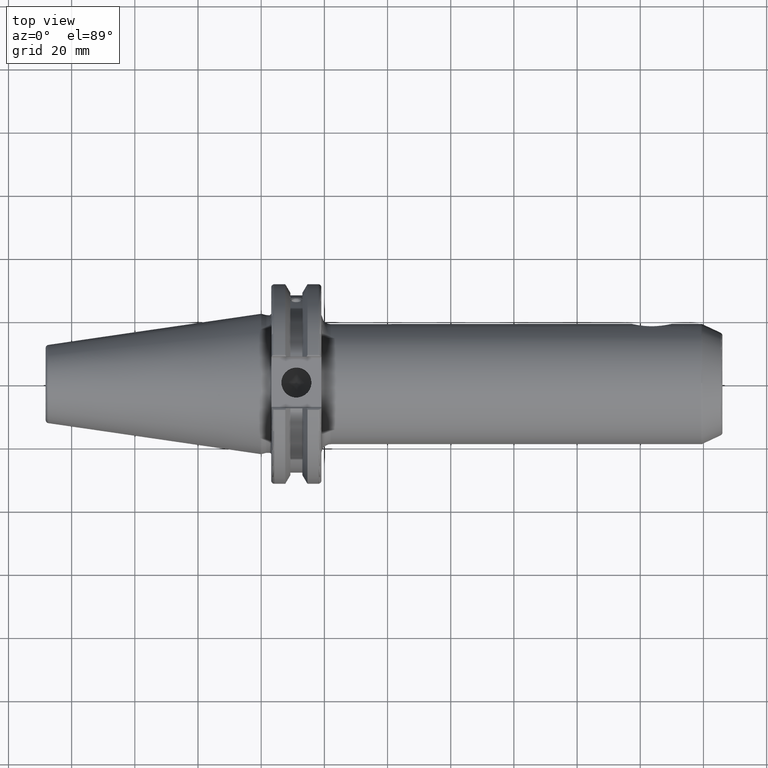
[diagram: clean part render]
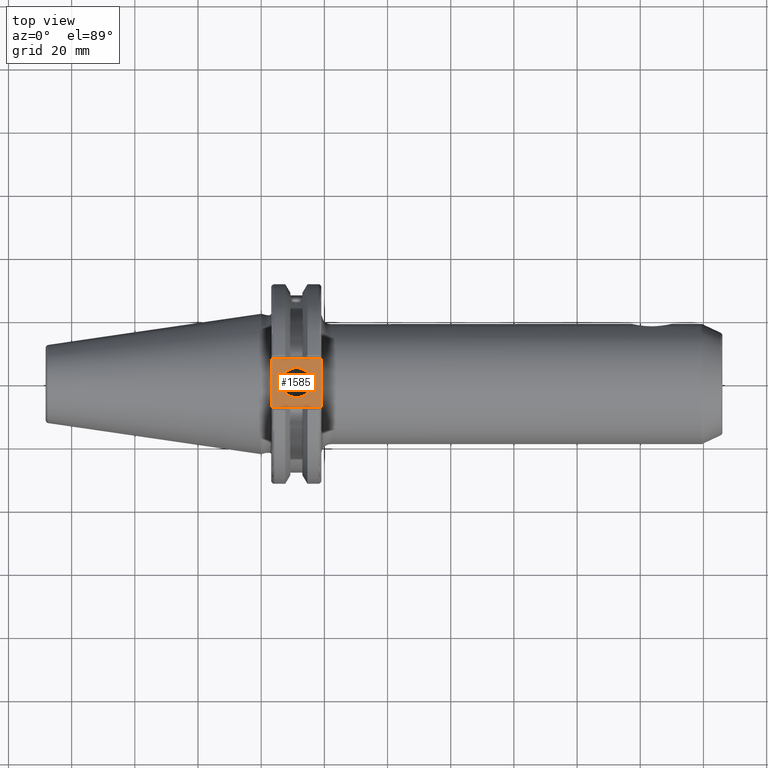
[diagram: same view with one face highlighted and labeled with its STEP entity id]
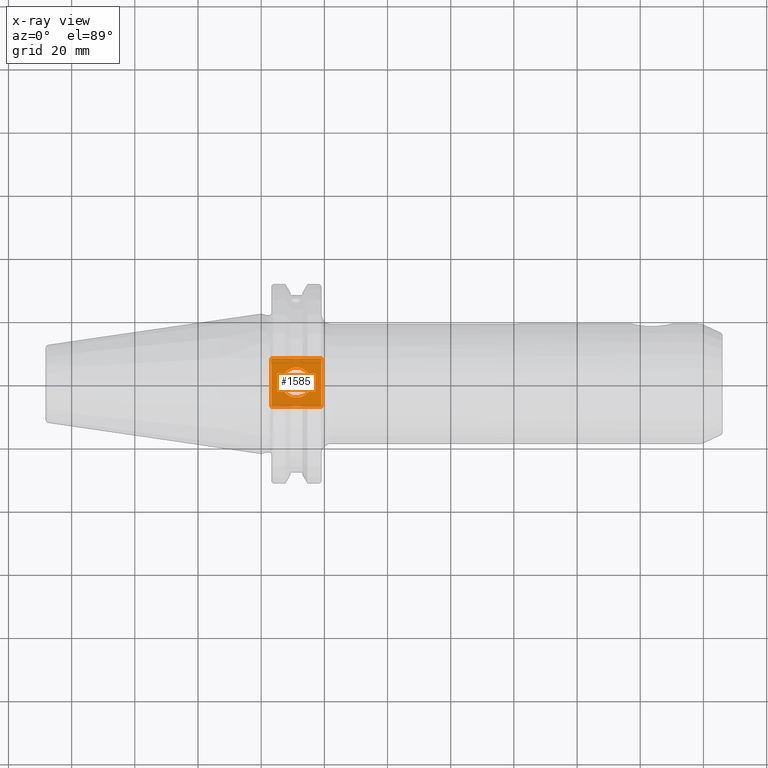
[diagram: x-ray of the same camera — body ghosted, the highlighted face saturated]
A machine part, top view. The second image highlights one B-rep face of the part: STEP entity #1585.
The next image is the same camera in x-ray: the body ghosted, the highlighted face saturated — about 0% of this face is hidden behind the body in this view.
In plain terms, the highlighted planar face has unit normal (0, 0, 1).
Its self-contained STEP definition (entity closure, byte-faithful):
#65=FACE_BOUND('',#326,.T.);
#101=PLANE('',#1786);
#222=FACE_OUTER_BOUND('',#325,.T.);
#325=EDGE_LOOP('',(#1462,#1463,#1464,#1465));
#326=EDGE_LOOP('',(#1466));
#401=CIRCLE('',#1774,4.7625);
#417=LINE('',#2388,#509);
#457=LINE('',#2809,#549);
#485=LINE('',#3038,#577);
#487=LINE('',#3041,#579);
#509=VECTOR('',#1867,10.);
#549=VECTOR('',#2071,10.);
#577=VECTOR('',#2165,10.);
#579=VECTOR('',#2169,10.);
#650=VERTEX_POINT('',#2385);
#651=VERTEX_POINT('',#2387);
#735=VERTEX_POINT('',#2806);
#736=VERTEX_POINT('',#2808);
#782=VERTEX_POINT('',#3077);
#816=EDGE_CURVE('',#650,#651,#417,.T.);
#928=EDGE_CURVE('',#735,#736,#457,.T.);
#991=EDGE_CURVE('',#651,#735,#485,.T.);
#993=EDGE_CURVE('',#736,#650,#487,.T.);
#1008=EDGE_CURVE('',#782,#782,#401,.T.);
#1462=ORIENTED_EDGE('',*,*,#991,.F.);
#1463=ORIENTED_EDGE('',*,*,#816,.F.);
#1464=ORIENTED_EDGE('',*,*,#993,.F.);
#1465=ORIENTED_EDGE('',*,*,#928,.F.);
#1466=ORIENTED_EDGE('',*,*,#1008,.T.);
#1585=ADVANCED_FACE('',(#222,#65),#101,.T.);
#1774=AXIS2_PLACEMENT_3D('',#3078,#2204,#2205);
#1786=AXIS2_PLACEMENT_3D('',#3091,#2229,#2230);
#1867=DIRECTION('',(0.,-1.,0.));
#2071=DIRECTION('',(0.,1.,0.));
#2165=DIRECTION('',(-1.,1.31581988103722E-16,0.));
#2169=DIRECTION('',(1.,0.,0.));
#2204=DIRECTION('center_axis',(0.,0.,-1.));
#2205=DIRECTION('ref_axis',(1.,0.,0.));
#2229=DIRECTION('center_axis',(0.,0.,1.));
#2230=DIRECTION('ref_axis',(1.,0.,0.));
#2385=CARTESIAN_POINT('',(19.05,7.69,25.));
#2387=CARTESIAN_POINT('',(19.05,-7.69,25.));
#2388=CARTESIAN_POINT('',(19.05,0.,25.));
#2806=CARTESIAN_POINT('',(3.175,-7.68999999999999,25.));
#2808=CARTESIAN_POINT('',(3.175,7.69,25.));
#2809=CARTESIAN_POINT('',(3.175,15.875,25.));
#3038=CARTESIAN_POINT('',(9.44125,-7.69,25.));
#3041=CARTESIAN_POINT('',(17.87875,7.69,25.));
#3077=CARTESIAN_POINT('',(6.3716,-5.83238038093927E-16,25.));
#3078=CARTESIAN_POINT('Origin',(11.1341,0.,25.));
#3091=CARTESIAN_POINT('Origin',(15.7075,0.,25.));